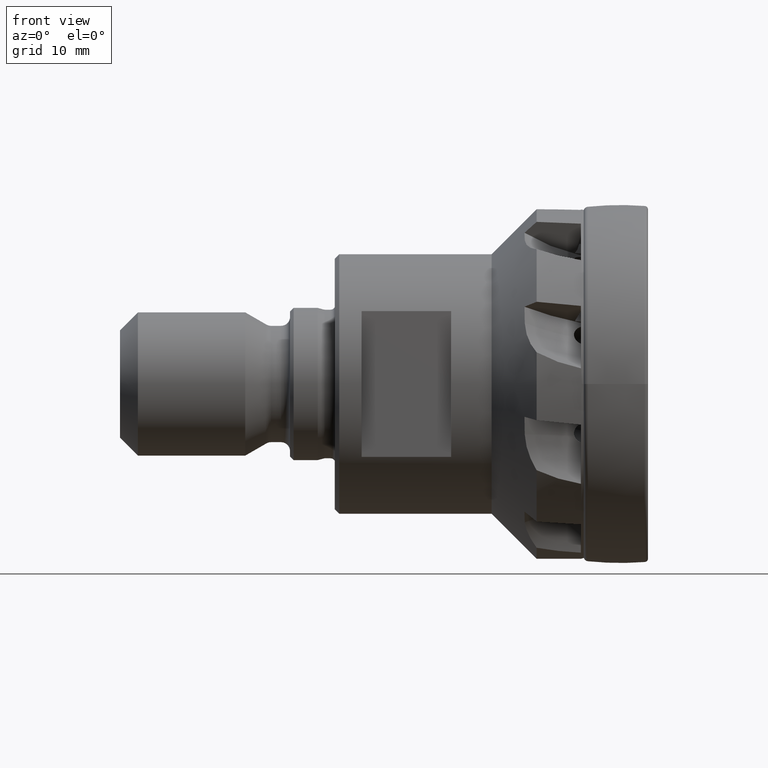
[diagram: clean part render]
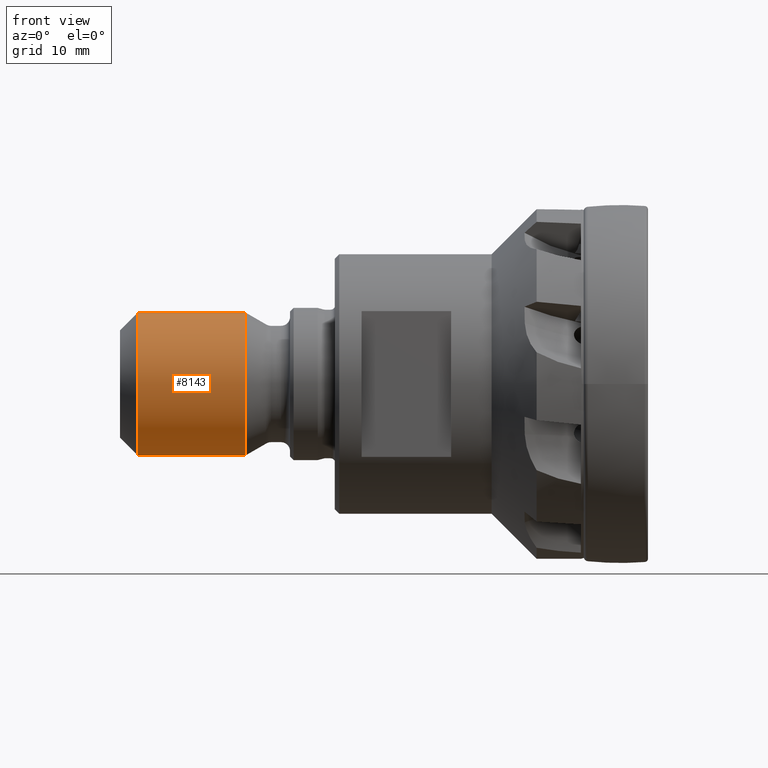
[diagram: same view with one face highlighted and labeled with its STEP entity id]
A machine part, front view. The second image highlights one B-rep face of the part: STEP entity #8143.
In plain terms, the highlighted cylindrical surface (partial cylindrical patch) has radius 8 mm, axis along (1, -0, -0).
Its self-contained STEP definition (entity closure, byte-faithful):
#160 = CARTESIAN_POINT ( 'NONE',  ( -44.54999999999999700, 0.0000000000000000000, -7.999999998540237000 ) ) ;
#161 = CARTESIAN_POINT ( 'NONE',  ( -56.54999999999999700, 9.797174391391132700E-016, 7.999999998540237000 ) ) ;
#164 = CARTESIAN_POINT ( 'NONE',  ( -56.54999999999999700, 0.0000000000000000000, -7.999999998540237000 ) ) ;
#165 = CARTESIAN_POINT ( 'NONE',  ( -44.54999999999999700, 9.797174391391132700E-016, 7.999999998540237000 ) ) ;
#1736 = ORIENTED_EDGE ( 'NONE', *, *, #8101, .F. ) ;
#1737 = ORIENTED_EDGE ( 'NONE', *, *, #6932, .T. ) ;
#1738 = ORIENTED_EDGE ( 'NONE', *, *, #8102, .T. ) ;
#1739 = ORIENTED_EDGE ( 'NONE', *, *, #6933, .F. ) ;
#1861 = VERTEX_POINT ( 'NONE', #160 ) ;
#1862 = VERTEX_POINT ( 'NONE', #161 ) ;
#1865 = VERTEX_POINT ( 'NONE', #164 ) ;
#1866 = VERTEX_POINT ( 'NONE', #165 ) ;
#2016 = AXIS2_PLACEMENT_3D ( 'NONE', #4881, #4877, #4883 ) ;
#3092 = CARTESIAN_POINT ( 'NONE',  ( -56.54999999999999700, 0.0000000000000000000, 0.0000000000000000000 ) ) ;
#3093 = DIRECTION ( 'NONE',  ( 1.000000000000000000, -0.0000000000000000000, -0.0000000000000000000 ) ) ;
#3094 = DIRECTION ( 'NONE',  ( 0.0000000000000000000, 0.0000000000000000000, -1.000000000000000000 ) ) ;
#3095 = CARTESIAN_POINT ( 'NONE',  ( -44.54999999999999700, 0.0000000000000000000, 0.0000000000000000000 ) ) ;
#3096 = DIRECTION ( 'NONE',  ( 1.000000000000000000, -0.0000000000000000000, -0.0000000000000000000 ) ) ;
#3097 = DIRECTION ( 'NONE',  ( 0.0000000000000000000, 0.0000000000000000000, -1.000000000000000000 ) ) ;
#3807 = EDGE_LOOP ( 'NONE', ( #1736, #1737, #1738, #1739 ) ) ;
#4700 = CARTESIAN_POINT ( 'NONE',  ( 0.0000000000000000000, 9.797174391391132700E-016, 7.999999998540237000 ) ) ;
#4707 = LINE ( 'NONE', #4700, #5952 ) ;
#4712 = DIRECTION ( 'NONE',  ( 1.000000000000000000, -0.0000000000000000000, -0.0000000000000000000 ) ) ;
#4713 = LINE ( 'NONE', #4714, #5947 ) ;
#4714 = CARTESIAN_POINT ( 'NONE',  ( 0.0000000000000000000, 0.0000000000000000000, -7.999999998540237000 ) ) ;
#4715 = DIRECTION ( 'NONE',  ( 1.000000000000000000, -0.0000000000000000000, -0.0000000000000000000 ) ) ;
#4877 = DIRECTION ( 'NONE',  ( 1.000000000000000000, -0.0000000000000000000, -0.0000000000000000000 ) ) ;
#4879 = CYLINDRICAL_SURFACE ( 'NONE', #2016, 7.999999998540237000 ) ;
#4880 = FACE_OUTER_BOUND ( 'NONE', #3807, .T. ) ;
#4881 = CARTESIAN_POINT ( 'NONE',  ( 0.0000000000000000000, 0.0000000000000000000, 0.0000000000000000000 ) ) ;
#4883 = DIRECTION ( 'NONE',  ( 0.0000000000000000000, 0.0000000000000000000, -1.000000000000000000 ) ) ;
#5444 = CIRCLE ( 'NONE', #5449, 7.999999998540237000 ) ;
#5446 = CIRCLE ( 'NONE', #5451, 7.999999998540237000 ) ;
#5449 = AXIS2_PLACEMENT_3D ( 'NONE', #3092, #3093, #3094 ) ;
#5451 = AXIS2_PLACEMENT_3D ( 'NONE', #3095, #3096, #3097 ) ;
#5947 = VECTOR ( 'NONE', #4715, 1000.000000000000000 ) ;
#5952 = VECTOR ( 'NONE', #4712, 1000.000000000000000 ) ;
#6932 = EDGE_CURVE ( 'NONE', #1862, #1865, #5444, .T. ) ;
#6933 = EDGE_CURVE ( 'NONE', #1866, #1861, #5446, .T. ) ;
#8101 = EDGE_CURVE ( 'NONE', #1862, #1866, #4707, .T. ) ;
#8102 = EDGE_CURVE ( 'NONE', #1865, #1861, #4713, .T. ) ;
#8143 = ADVANCED_FACE ( 'NONE', ( #4880 ), #4879, .T. ) ;